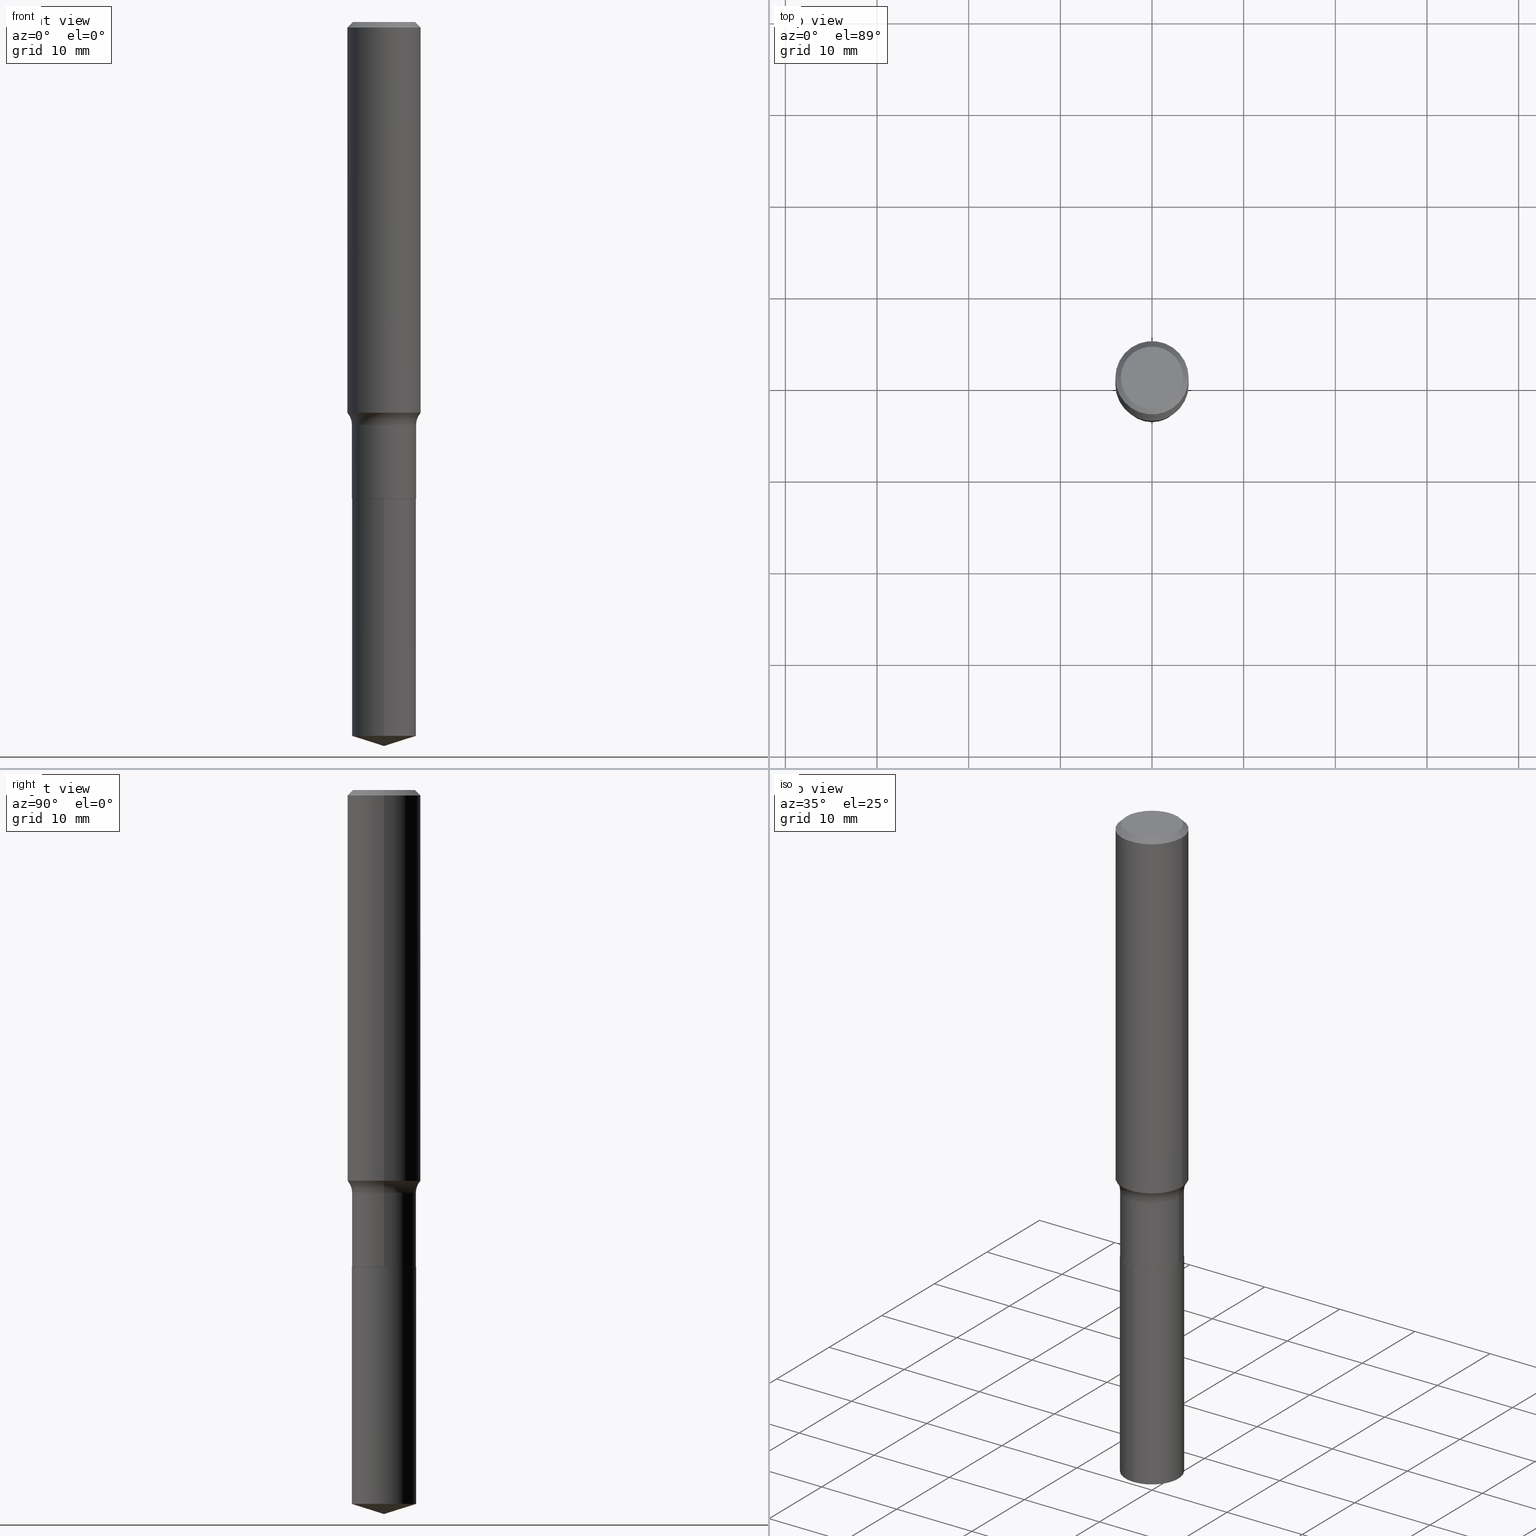
[diagram: canonical four-view strip — front | top / right | iso, engineering-drawing reading convention]
A machine part, canonical four-view strip (front | top / right | iso — engineering-drawing reading convention). The complete STEP part file that produces these views, byte-faithful:
ISO-10303-21;
HEADER;
FILE_DESCRIPTION (( 'STEP AP203' ),
    '1' );
FILE_NAME ('63177.STEP',
    '2024-04-19T14:57:51',
    ( '' ),
    ( '' ),
    'SwSTEP 2.0',
    'SolidWorks 2023',
    '' );
FILE_SCHEMA (( 'CONFIG_CONTROL_DESIGN' ));
ENDSEC;

DATA;
#1 = ORIENTED_EDGE ( 'NONE', *, *, #339, .F. ) ;
#2 = CC_DESIGN_APPROVAL ( #476, ( #38 ) ) ;
#3 = DIRECTION ( 'NONE',  ( -2.445770876945909598E-29, 3.491048756320918423E-15, 1.000000000000000000 ) ) ;
#4 = CYLINDRICAL_SURFACE ( 'NONE', #201, 0.1378000000000000058 ) ;
#5 = DIRECTION ( 'NONE',  ( -2.445770876945909598E-29, 3.491048756320918423E-15, 1.000000000000000000 ) ) ;
#6 = CARTESIAN_POINT ( 'NONE',  ( 0.1378000000000000058, -8.108267113195433386E-15, -2.046699999999999964 ) ) ;
#7 = CLOSED_SHELL ( 'NONE', ( #464, #281, #354, #455, #478 ) ) ;
#8 = CARTESIAN_POINT ( 'NONE',  ( 0.1338749999999999940, -1.040731925365424925E-15, 4.101342130351390035E-18 ) ) ;
#9 = DIRECTION ( 'NONE',  ( -6.659769872151639977E-15, -0.9537169507482280428, 0.3007057995042693443 ) ) ;
#10 = ORIENTED_EDGE ( 'NONE', *, *, #68, .F. ) ;
#11 = CARTESIAN_POINT ( 'NONE',  ( -0.1378000000000000336, -5.614534618527862586E-15, -2.046699999999999964 ) ) ;
#12 = CARTESIAN_POINT ( 'NONE',  ( 7.606847426740291198E-29, -1.085785984190932197E-14, -3.110199999999999854 ) ) ;
#13 = CARTESIAN_POINT ( 'NONE',  ( 5.777420054612421980E-31, -8.248624663016985234E-17, -0.02362500000000015282 ) ) ;
#14 = CARTESIAN_POINT ( 'NONE',  ( 5.006363740022211680E-29, -7.147760596879688202E-15, -2.047200000000000131 ) ) ;
#15 = FACE_OUTER_BOUND ( 'NONE', #24, .T. ) ;
#16 = AXIS2_PLACEMENT_3D ( 'NONE', #88, #5, #132 ) ;
#17 = COORDINATED_UNIVERSAL_TIME_OFFSET ( 5, 0, .BEHIND. ) ;
#18 = EDGE_CURVE ( 'NONE', #368, #175, #269, .T. ) ;
#19 = CARTESIAN_POINT ( 'NONE',  ( -0.1338749999999999940, 9.760872517903331886E-16, 4.101342130337800673E-18 ) ) ;
#20 = ORIENTED_EDGE ( 'NONE', *, *, #23, .F. ) ;
#21 = VECTOR ( 'NONE', #394, 39.37007874015748143 ) ;
#22 = TOROIDAL_SURFACE ( 'NONE', #219, 0.2157999999999999641, 0.07799999999999994438 ) ;
#23 = EDGE_CURVE ( 'NONE', #229, #116, #245, .T. ) ;
#24 = EDGE_LOOP ( 'NONE', ( #329, #155, #461, #419 ) ) ;
#25 = VERTEX_POINT ( 'NONE', #43 ) ;
#26 = DIRECTION ( 'NONE',  ( -2.445770876945909598E-29, 3.491048756320918423E-15, 1.000000000000000000 ) ) ;
#27 = CIRCLE ( 'NONE', #446, 0.1377999999999999781 ) ;
#28 = ORIENTED_EDGE ( 'NONE', *, *, #412, .F. ) ;
#29 = EDGE_CURVE ( 'NONE', #25, #274, #228, .T. ) ;
#30 = PRODUCT_DEFINITION_SHAPE ( 'NONE', 'NONE',  #367 ) ;
#31 =( GEOMETRIC_REPRESENTATION_CONTEXT ( 3 ) GLOBAL_UNCERTAINTY_ASSIGNED_CONTEXT ( ( #361 ) ) GLOBAL_UNIT_ASSIGNED_CONTEXT ( ( #253, #467, #98 ) ) REPRESENTATION_CONTEXT ( 'NONE', 'WORKASPACE' ) );
#32 = AXIS2_PLACEMENT_3D ( 'NONE', #39, #120, #115 ) ;
#33 = CARTESIAN_POINT ( 'NONE',  ( 4.231394675342142307E-29, -6.041310160600295064E-15, -1.730300000000000171 ) ) ;
#34 = ORIENTED_EDGE ( 'NONE', *, *, #441, .F. ) ;
#35 = DIRECTION ( 'NONE',  ( -1.000000000000000000, 6.982962677686265922E-15, -4.876176775795935793E-29 ) ) ;
#36 = EDGE_CURVE ( 'NONE', #204, #274, #124, .T. ) ;
#37 = CARTESIAN_POINT ( 'NONE',  ( 5.006363740022211680E-29, -7.147760596879688202E-15, -2.047200000000000131 ) ) ;
#38 = SECURITY_CLASSIFICATION ( '', '', #474 ) ;
#39 = CARTESIAN_POINT ( 'NONE',  ( 5.777420054612421980E-31, -8.248624663016985234E-17, -0.02362500000000015282 ) ) ;
#40 = EDGE_LOOP ( 'NONE', ( #369, #134, #221, #188 ) ) ;
#41 = DIRECTION ( 'NONE',  ( 6.776566513254266815E-15, 0.9537169507482301523, 0.3007057995042627385 ) ) ;
#42 = CARTESIAN_POINT ( 'NONE',  ( 5.005141005619118879E-29, -7.146014856210265909E-15, -2.046699999999999964 ) ) ;
#43 = CARTESIAN_POINT ( 'NONE',  ( -0.1575000000000002232, -4.741283607490324763E-15, -1.678481952950733325 ) ) ;
#44 = CIRCLE ( 'NONE', #388, 0.1575000000000000011 ) ;
#45 = ORIENTED_EDGE ( 'NONE', *, *, #103, .T. ) ;
#46 = CIRCLE ( 'NONE', #475, 0.1338749999999999940 ) ;
#47 = CARTESIAN_POINT ( 'NONE',  ( 5.777420054612421980E-31, -8.248624663016985234E-17, -0.02362500000000015282 ) ) ;
#48 = FACE_OUTER_BOUND ( 'NONE', #399, .T. ) ;
#49 = ORIENTED_EDGE ( 'NONE', *, *, #136, .F. ) ;
#50 = MANIFOLD_SOLID_BREP ( 'Body-Move/Copy2[1]', #7 ) ;
#51 = AXIS2_PLACEMENT_3D ( 'NONE', #233, #75, #384 ) ;
#52 = EDGE_CURVE ( 'NONE', #25, #262, #336, .T. ) ;
#53 = CARTESIAN_POINT ( 'NONE',  ( -0.1373000000000000054, -6.172185420681070017E-15, -2.047200000000000131 ) ) ;
#54 = DIRECTION ( 'NONE',  ( -0.7071067811866320607, 7.493145998870660238E-15, 0.7071067811864629737 ) ) ;
#55 = AXIS2_PLACEMENT_3D ( 'NONE', #379, #170, #327 ) ;
#56 = PERSON_AND_ORGANIZATION_ROLE ( 'design_supplier' ) ;
#57 = EDGE_CURVE ( 'NONE', #274, #175, #142, .T. ) ;
#58 = CARTESIAN_POINT ( 'NONE',  ( -0.1377999999999999781, -5.614534618527862586E-15, -1.730300000000000171 ) ) ;
#59 = VECTOR ( 'NONE', #131, 39.37007874015748143 ) ;
#60 = VECTOR ( 'NONE', #386, 39.37007874015748143 ) ;
#61 = ADVANCED_FACE ( 'NONE', ( #133 ), #67, .T. ) ;
#62 = DIRECTION ( 'NONE',  ( -2.445468806185136597E-29, 3.491481338843145583E-15, 1.000000000000000000 ) ) ;
#63 = VECTOR ( 'NONE', #9, 39.37007874015748854 ) ;
#64 = CC_DESIGN_PERSON_AND_ORGANIZATION_ASSIGNMENT ( #393, #353, ( #101 ) ) ;
#65 = ORIENTED_EDGE ( 'NONE', *, *, #183, .T. ) ;
#66 = ORIENTED_EDGE ( 'NONE', *, *, #152, .F. ) ;
#67 = CYLINDRICAL_SURFACE ( 'NONE', #190, 0.1378000000000000058 ) ;
#68 = EDGE_CURVE ( 'NONE', #175, #274, #44, .T. ) ;
#69 = EDGE_LOOP ( 'NONE', ( #105, #480, #484, #482 ) ) ;
#70 = DATE_AND_TIME ( #109, #139 ) ;
#71 = DIMENSIONAL_EXPONENTS ( 1.000000000000000000, 0.000000000000000000, 0.000000000000000000, 0.000000000000000000, 0.000000000000000000, 0.000000000000000000, 0.000000000000000000 ) ;
#72 = CLOSED_SHELL ( 'NONE', ( #409, #99, #202, #406, #61, #468, #110, #320, #93, #81, #346, #209 ) ) ;
#73 = CARTESIAN_POINT ( 'NONE',  ( -0.1575000000000000011, 1.017330375105417098E-15, -0.02362500000000015282 ) ) ;
#74 = AXIS2_PLACEMENT_3D ( 'NONE', #149, #218, #363 ) ;
#75 = DIRECTION ( 'NONE',  ( -2.445468806185136597E-29, 3.491481338843145583E-15, 1.000000000000000000 ) ) ;
#76 = FACE_OUTER_BOUND ( 'NONE', #150, .T. ) ;
#77 = LOCAL_TIME ( 10, 57, 51.00000000000000000, #437 ) ;
#78 = CARTESIAN_POINT ( 'NONE',  ( 4.231394675342142307E-29, -6.041310160600295064E-15, -1.730300000000000171 ) ) ;
#79 = ORIENTED_EDGE ( 'NONE', *, *, #90, .T. ) ;
#80 = DIRECTION ( 'NONE',  ( -2.445770876945909598E-29, 3.491048756320918423E-15, 1.000000000000000000 ) ) ;
#81 = ADVANCED_FACE ( 'NONE', ( #172 ), #454, .F. ) ;
#82 = PLANE ( 'NONE',  #268 ) ;
#83 = ORIENTED_EDGE ( 'NONE', *, *, #52, .T. ) ;
#84 = CONICAL_SURFACE ( 'NONE', #153, 0.1575000000000000011, 0.7853981633974447263 ) ;
#85 = VECTOR ( 'NONE', #143, 39.37007874015748143 ) ;
#86 = PERSON_AND_ORGANIZATION ( #226, #185 ) ;
#87 = CARTESIAN_POINT ( 'NONE',  ( 0.1373000000000000054, -8.106521372526011094E-15, -2.047200000000000131 ) ) ;
#88 = CARTESIAN_POINT ( 'NONE',  ( 7.499953905772830798E-29, -1.070706573415739068E-14, -3.066751826892477162 ) ) ;
#89 = CARTESIAN_POINT ( 'NONE',  ( 0.000000000000000000, 0.000000000000000000, 0.000000000000000000 ) ) ;
#90 = EDGE_CURVE ( 'NONE', #408, #262, #27, .T. ) ;
#91 = CARTESIAN_POINT ( 'NONE',  ( 0.1378000000000000058, -9.622522569851674770E-16, 6.719371597046798536E-30 ) ) ;
#92 = EDGE_LOOP ( 'NONE', ( #237, #434 ) ) ;
#93 = ADVANCED_FACE ( 'NONE', ( #326 ), #84, .T. ) ;
#94 = DATE_AND_TIME ( #402, #343 ) ;
#95 = CARTESIAN_POINT ( 'NONE',  ( 9.791278898774930393E-16, 0.1377999999999892644, -3.066751826892477606 ) ) ;
#96 = CARTESIAN_POINT ( 'NONE',  ( 5.005141005619118879E-29, -7.146014856210265909E-15, -2.046699999999999964 ) ) ;
#97 = APPROVAL_ROLE ( '' ) ;
#98 =( NAMED_UNIT ( * ) SI_UNIT ( $, .STERADIAN. ) SOLID_ANGLE_UNIT ( ) );
#99 = ADVANCED_FACE ( 'NONE', ( #452 ), #254, .T. ) ;
#100 = DIRECTION ( 'NONE',  ( -6.982962677686266711E-15, -1.000000000000000000, 3.491481338843145583E-15 ) ) ;
#101 = PRODUCT_DEFINITION_FORMATION_WITH_SPECIFIED_SOURCE ( 'ANY', '', #251, .NOT_KNOWN. ) ;
#102 = ORIENTED_EDGE ( 'NONE', *, *, #339, .T. ) ;
#103 = EDGE_CURVE ( 'NONE', #317, #25, #217, .T. ) ;
#104 = APPROVAL_PERSON_ORGANIZATION ( #86, #476, #97 ) ;
#105 = ORIENTED_EDGE ( 'NONE', *, *, #18, .F. ) ;
#106 = CC_DESIGN_PERSON_AND_ORGANIZATION_ASSIGNMENT ( #140, #215, ( #38 ) ) ;
#107 = CIRCLE ( 'NONE', #377, 0.1377999999999999781 ) ;
#108 = VERTEX_POINT ( 'NONE', #6 ) ;
#109 = CALENDAR_DATE ( 2024, 19, 4 ) ;
#110 = ADVANCED_FACE ( 'NONE', ( #458 ), #22, .F. ) ;
#111 = EDGE_LOOP ( 'NONE', ( #293, #148, #488, #164 ) ) ;
#112 = CARTESIAN_POINT ( 'NONE',  ( 0.1575000000000002232, -6.960205038048073791E-15, -1.678481952950733325 ) ) ;
#113 = APPLICATION_CONTEXT ( 'configuration controlled 3d designs of mechanical parts and assemblies' ) ;
#114 = CARTESIAN_POINT ( 'NONE',  ( 0.1377999999999999781, -7.003562417585462541E-15, -1.730300000000000171 ) ) ;
#115 = DIRECTION ( 'NONE',  ( -1.000000000000000000, 6.982962677686265922E-15, 0.000000000000000000 ) ) ;
#116 = VERTEX_POINT ( 'NONE', #421 ) ;
#117 = DIRECTION ( 'NONE',  ( 1.000000000000000000, -6.982962677686267499E-15, 0.000000000000000000 ) ) ;
#118 = CALENDAR_DATE ( 2024, 19, 4 ) ;
#119 = CYLINDRICAL_SURFACE ( 'NONE', #321, 0.1378000000000000058 ) ;
#120 = DIRECTION ( 'NONE',  ( 2.445468806185136597E-29, -3.491481338843145583E-15, -1.000000000000000000 ) ) ;
#121 = CIRCLE ( 'NONE', #323, 0.1378000000000000058 ) ;
#122 = ORIENTED_EDGE ( 'NONE', *, *, #309, .T. ) ;
#123 = DIRECTION ( 'NONE',  ( -2.445468806185136597E-29, 3.491481338843145583E-15, 1.000000000000000000 ) ) ;
#124 = LINE ( 'NONE', #73, #60 ) ;
#125 = ORIENTED_EDGE ( 'NONE', *, *, #126, .F. ) ;
#126 = EDGE_CURVE ( 'NONE', #108, #408, #430, .T. ) ;
#127 = AXIS2_PLACEMENT_3D ( 'NONE', #166, #277, #265 ) ;
#128 = ORIENTED_EDGE ( 'NONE', *, *, #371, .F. ) ;
#129 = ORIENTED_EDGE ( 'NONE', *, *, #234, .T. ) ;
#130 = CC_DESIGN_PERSON_AND_ORGANIZATION_ASSIGNMENT ( #470, #56, ( #101 ) ) ;
#131 = DIRECTION ( 'NONE',  ( -2.445468806185136877E-29, 3.491481338843145188E-15, 1.000000000000000000 ) ) ;
#132 = DIRECTION ( 'NONE',  ( -6.982962677686265922E-15, -1.000000000000000000, 3.964946289788480896E-15 ) ) ;
#133 = FACE_OUTER_BOUND ( 'NONE', #362, .T. ) ;
#134 = ORIENTED_EDGE ( 'NONE', *, *, #18, .T. ) ;
#135 = CIRCLE ( 'NONE', #404, 0.1378000000000000058 ) ;
#136 = EDGE_CURVE ( 'NONE', #317, #408, #154, .T. ) ;
#137 = ORIENTED_EDGE ( 'NONE', *, *, #412, .T. ) ;
#138 = DIRECTION ( 'NONE',  ( 1.000000000000000000, -6.982962677686262766E-15, 0.000000000000000000 ) ) ;
#139 = LOCAL_TIME ( 10, 57, 51.00000000000000000, #448 ) ;
#140 = PERSON_AND_ORGANIZATION ( #226, #185 ) ;
#141 = CARTESIAN_POINT ( 'NONE',  ( 0.2157999999999999641, -7.548233506444991376E-15, -1.730300000000000171 ) ) ;
#142 = CIRCLE ( 'NONE', #318, 0.1575000000000000011 ) ;
#143 = DIRECTION ( 'NONE',  ( -2.445770876945909598E-29, 3.491048756320918423E-15, 1.000000000000000000 ) ) ;
#144 = CIRCLE ( 'NONE', #16, 0.1378000000000000058 ) ;
#145 = LENGTH_MEASURE_WITH_UNIT ( LENGTH_MEASURE( 0.02539999999999999897 ), #242 );
#146 = ORIENTED_EDGE ( 'NONE', *, *, #183, .F. ) ;
#147 = PRODUCT_RELATED_PRODUCT_CATEGORY ( 'detail', '', ( #251 ) ) ;
#148 = ORIENTED_EDGE ( 'NONE', *, *, #289, .T. ) ;
#149 = CARTESIAN_POINT ( 'NONE',  ( -8.868397382352875718E-28, 1.265841189972345679E-13, 36.25987874015748247 ) ) ;
#150 = EDGE_LOOP ( 'NONE', ( #410, #298 ) ) ;
#151 = VERTEX_POINT ( 'NONE', #95 ) ;
#152 = EDGE_CURVE ( 'NONE', #229, #151, #227, .T. ) ;
#153 = AXIS2_PLACEMENT_3D ( 'NONE', #159, #291, #328 ) ;
#154 = CIRCLE ( 'NONE', #184, 0.07799999999999993050 ) ;
#155 = ORIENTED_EDGE ( 'NONE', *, *, #364, .T. ) ;
#156 = CYLINDRICAL_SURFACE ( 'NONE', #313, 0.1575000000000000844 ) ;
#157 = APPROVAL_ROLE ( '' ) ;
#158 = CC_DESIGN_PERSON_AND_ORGANIZATION_ASSIGNMENT ( #360, #432, ( #251 ) ) ;
#159 = CARTESIAN_POINT ( 'NONE',  ( 5.777420054612421980E-31, -8.248624663016985234E-17, -0.02362500000000015282 ) ) ;
#160 = DIRECTION ( 'NONE',  ( -2.445770876945909598E-29, 3.491048756320918423E-15, 1.000000000000000000 ) ) ;
#161 = CIRCLE ( 'NONE', #127, 0.1373000000000000054 ) ;
#162 = DIRECTION ( 'NONE',  ( -2.445468806185136877E-29, 3.491481338843145188E-15, 1.000000000000000000 ) ) ;
#163 = DIRECTION ( 'NONE',  ( 1.000000000000000000, -6.982962677686262766E-15, 0.000000000000000000 ) ) ;
#164 = ORIENTED_EDGE ( 'NONE', *, *, #309, .F. ) ;
#165 = ORIENTED_EDGE ( 'NONE', *, *, #152, .T. ) ;
#166 = CARTESIAN_POINT ( 'NONE',  ( 5.006363740022211680E-29, -7.147760596879688202E-15, -2.047200000000000131 ) ) ;
#167 = DIRECTION ( 'NONE',  ( 0.7071067811865450192, -7.319954787623246579E-15, -0.7071067811865500152 ) ) ;
#168 = ORIENTED_EDGE ( 'NONE', *, *, #52, .F. ) ;
#169 = CC_DESIGN_DATE_AND_TIME_ASSIGNMENT ( #70, #263, ( #367 ) ) ;
#170 = DIRECTION ( 'NONE',  ( -2.445468806185136597E-29, 3.491481338843145583E-15, 1.000000000000000000 ) ) ;
#171 = CC_DESIGN_SECURITY_CLASSIFICATION ( #38, ( #101 ) ) ;
#172 = FACE_OUTER_BOUND ( 'NONE', #315, .T. ) ;
#173 = APPROVAL_STATUS ( 'not_yet_approved' ) ;
#174 = DIRECTION ( 'NONE',  ( 1.000000000000000000, -6.982962677686262766E-15, 0.000000000000000000 ) ) ;
#175 = VERTEX_POINT ( 'NONE', #199 ) ;
#176 = CIRCLE ( 'NONE', #255, 0.1338749999999999940 ) ;
#177 = CARTESIAN_POINT ( 'NONE',  ( 5.006363740022211680E-29, -7.147760596879688202E-15, -2.047200000000000131 ) ) ;
#178 = SHAPE_DEFINITION_REPRESENTATION ( #30, #306 ) ;
#179 = AXIS2_PLACEMENT_3D ( 'NONE', #303, #424, #385 ) ;
#180 = CARTESIAN_POINT ( 'NONE',  ( -0.1575000000000000011, -1.852332522649168278E-15, -0.02362500000000015282 ) ) ;
#181 = CARTESIAN_POINT ( 'NONE',  ( 7.606836581477168962E-29, -1.085785984190932197E-14, -3.110199999999999854 ) ) ;
#182 = AXIS2_PLACEMENT_3D ( 'NONE', #418, #305, #35 ) ;
#183 = EDGE_CURVE ( 'NONE', #262, #408, #107, .T. ) ;
#184 = AXIS2_PLACEMENT_3D ( 'NONE', #141, #100, #433 ) ;
#185 = ORGANIZATION ( 'UNSPECIFIED', 'UNSPECIFIED', '' ) ;
#186 = EDGE_CURVE ( 'NONE', #247, #300, #211, .T. ) ;
#187 = DIRECTION ( 'NONE',  ( -2.438088387897960049E-29, 3.491481338843145188E-15, 1.000000000000000000 ) ) ;
#188 = ORIENTED_EDGE ( 'NONE', *, *, #36, .F. ) ;
#189 = AXIS2_PLACEMENT_3D ( 'NONE', #492, #160, #292 ) ;
#190 = AXIS2_PLACEMENT_3D ( 'NONE', #340, #236, #491 ) ;
#191 = VECTOR ( 'NONE', #41, 39.37007874015748854 ) ;
#192 = CARTESIAN_POINT ( 'NONE',  ( 0.000000000000000000, 0.000000000000000000, 0.000000000000000000 ) ) ;
#193 = CARTESIAN_POINT ( 'NONE',  ( -0.1575000000000000844, 1.119104808822158392E-15, -7.747322767151481189E-30 ) ) ;
#194 = CYLINDRICAL_SURFACE ( 'NONE', #232, 0.1575000000000000844 ) ;
#195 = ORIENTED_EDGE ( 'NONE', *, *, #485, .T. ) ;
#196 = LINE ( 'NONE', #231, #21 ) ;
#197 = DIRECTION ( 'NONE',  ( 1.000000000000000000, -6.982962677686267499E-15, 4.876176775795936353E-29 ) ) ;
#198 = DIRECTION ( 'NONE',  ( 1.000000000000000000, -6.982962677686267499E-15, 0.000000000000000000 ) ) ;
#199 = CARTESIAN_POINT ( 'NONE',  ( 0.1575000000000000011, -1.182302868365756679E-15, -0.02362500000000015282 ) ) ;
#200 = DIRECTION ( 'NONE',  ( 1.000000000000000000, -6.982962677686265133E-15, 4.883557194083112340E-29 ) ) ;
#201 = AXIS2_PLACEMENT_3D ( 'NONE', #457, #123, #271 ) ;
#202 = ADVANCED_FACE ( 'NONE', ( #272 ), #156, .T. ) ;
#203 = DIRECTION ( 'NONE',  ( -2.445468806185136597E-29, 3.491481338843145583E-15, 1.000000000000000000 ) ) ;
#204 = VERTEX_POINT ( 'NONE', #19 ) ;
#205 = DIRECTION ( 'NONE',  ( -2.445468806185136597E-29, 3.491481338843145583E-15, 1.000000000000000000 ) ) ;
#206 = DIRECTION ( 'NONE',  ( -2.445468806185136597E-29, 3.491481338843145583E-15, 1.000000000000000000 ) ) ;
#207 = DIRECTION ( 'NONE',  ( -6.982962677686265922E-15, -1.000000000000000000, 3.964946289788480896E-15 ) ) ;
#208 = DIRECTION ( 'NONE',  ( 1.000000000000000000, -6.982962677686265922E-15, 0.000000000000000000 ) ) ;
#209 = ADVANCED_FACE ( 'NONE', ( #15 ), #319, .T. ) ;
#210 = DIRECTION ( 'NONE',  ( -6.982962677686265922E-15, -1.000000000000000000, 3.964946289788480896E-15 ) ) ;
#211 = CIRCLE ( 'NONE', #447, 0.1378000000000000058 ) ;
#212 = DIRECTION ( 'NONE',  ( 1.000000000000000000, 0.000000000000000000, 0.000000000000000000 ) ) ;
#213 = AXIS2_PLACEMENT_3D ( 'NONE', #89, #280, #212 ) ;
#214 = CARTESIAN_POINT ( 'NONE',  ( 0.1373000000000000054, -8.106521372526011094E-15, -2.047200000000000131 ) ) ;
#215 = PERSON_AND_ORGANIZATION_ROLE ( 'classification_officer' ) ;
#216 = CC_DESIGN_PERSON_AND_ORGANIZATION_ASSIGNMENT ( #451, #423, ( #367 ) ) ;
#217 = CIRCLE ( 'NONE', #51, 0.1575000000000002232 ) ;
#218 = DIRECTION ( 'NONE',  ( -2.445770876945909598E-29, 3.491048756320918423E-15, 1.000000000000000000 ) ) ;
#219 = AXIS2_PLACEMENT_3D ( 'NONE', #78, #206, #338 ) ;
#220 = APPLICATION_PROTOCOL_DEFINITION ( 'international standard', 'config_control_design', 1994, #113 ) ;
#221 = ORIENTED_EDGE ( 'NONE', *, *, #68, .T. ) ;
#222 = CIRCLE ( 'NONE', #189, 0.1378000000000000058 ) ;
#223 = ORIENTED_EDGE ( 'NONE', *, *, #289, .F. ) ;
#224 = EDGE_LOOP ( 'NONE', ( #426, #425, #422, #449 ) ) ;
#225 = CARTESIAN_POINT ( 'NONE',  ( -9.622522569851173843E-16, -0.1378000000000071668, -2.047199999999999243 ) ) ;
#226 = PERSON ( 'UNSPECIFIED', 'UNSPECIFIED', 'UNSPECIFIED', ('UNSPECIFIED'), ('UNSPECIFIED'), ('UNSPECIFIED') ) ;
#227 = LINE ( 'NONE', #12, #191 ) ;
#228 = LINE ( 'NONE', #193, #283 ) ;
#229 = VERTEX_POINT ( 'NONE', #181 ) ;
#230 = COORDINATED_UNIVERSAL_TIME_OFFSET ( 5, 0, .BEHIND. ) ;
#231 = CARTESIAN_POINT ( 'NONE',  ( 0.1575000000000000844, -1.099816621735587677E-15, 7.679978421878603638E-30 ) ) ;
#232 = AXIS2_PLACEMENT_3D ( 'NONE', #192, #325, #197 ) ;
#233 = CARTESIAN_POINT ( 'NONE',  ( 4.104675257685727015E-29, -5.860388416312484733E-15, -1.678481952950733325 ) ) ;
#234 = EDGE_CURVE ( 'NONE', #204, #368, #176, .T. ) ;
#235 = DIRECTION ( 'NONE',  ( -6.982962677686265922E-15, -1.000000000000000000, 3.964946289788480896E-15 ) ) ;
#236 = DIRECTION ( 'NONE',  ( -2.445468806185136597E-29, 3.491481338843145583E-15, 1.000000000000000000 ) ) ;
#237 = ORIENTED_EDGE ( 'NONE', *, *, #438, .F. ) ;
#238 = PLANE ( 'NONE',  #179 ) ;
#239 = AXIS2_PLACEMENT_3D ( 'NONE', #37, #80, #207 ) ;
#240 = DIRECTION ( 'NONE',  ( 7.105427357601001859E-15, 1.000000000000000000, -3.491481338843145583E-15 ) ) ;
#241 = ORIENTED_EDGE ( 'NONE', *, *, #57, .F. ) ;
#242 =( LENGTH_UNIT ( ) NAMED_UNIT ( * ) SI_UNIT ( $, .METRE. ) );
#243 = CONICAL_SURFACE ( 'NONE', #74, 124.8659371009170940, 1.265363707695896345 ) ;
#244 = EDGE_CURVE ( 'NONE', #108, #370, #135, .T. ) ;
#245 = LINE ( 'NONE', #465, #63 ) ;
#246 = LINE ( 'NONE', #295, #59 ) ;
#247 = VERTEX_POINT ( 'NONE', #479 ) ;
#248 = EDGE_CURVE ( 'NONE', #270, #370, #400, .T. ) ;
#249 = APPROVAL_DATE_TIME ( #94, #459 ) ;
#250 = MECHANICAL_CONTEXT ( 'NONE', #113, 'mechanical' ) ;
#251 = PRODUCT ( '63177', '63177', '', ( #250 ) ) ;
#252 = CIRCLE ( 'NONE', #429, 0.1378000000000000058 ) ;
#253 =( CONVERSION_BASED_UNIT ( 'INCH', #145 ) LENGTH_UNIT ( ) NAMED_UNIT ( #71 ) );
#254 = CONICAL_SURFACE ( 'NONE', #32, 0.1575000000000000011, 0.7853981633974447263 ) ;
#255 = AXIS2_PLACEMENT_3D ( 'NONE', #473, #435, #397 ) ;
#256 = DIRECTION ( 'NONE',  ( 1.000000000000000000, -6.982962677686266711E-15, 4.876170806578254279E-29 ) ) ;
#257 = DIRECTION ( 'NONE',  ( 1.000000000000000000, -6.982962677686265922E-15, 4.876176775795935793E-29 ) ) ;
#258 = APPROVAL_PERSON_ORGANIZATION ( #439, #459, #350 ) ;
#259 = LINE ( 'NONE', #225, #358 ) ;
#260 = AXIS2_PLACEMENT_3D ( 'NONE', #365, #26, #481 ) ;
#261 = EDGE_CURVE ( 'NONE', #396, #108, #352, .T. ) ;
#262 = VERTEX_POINT ( 'NONE', #58 ) ;
#263 = DATE_TIME_ROLE ( 'creation_date' ) ;
#264 = CIRCLE ( 'NONE', #55, 0.1575000000000002232 ) ;
#265 = DIRECTION ( 'NONE',  ( 1.000000000000000000, -6.982962677686262766E-15, 0.000000000000000000 ) ) ;
#266 = CARTESIAN_POINT ( 'NONE',  ( 0.1575000000000000011, -1.163014681279185964E-15, -0.02362500000000015282 ) ) ;
#267 = CARTESIAN_POINT ( 'NONE',  ( 5.006363740022211680E-29, -7.147760596879688202E-15, -2.047200000000000131 ) ) ;
#268 = AXIS2_PLACEMENT_3D ( 'NONE', #344, #187, #257 ) ;
#269 = LINE ( 'NONE', #266, #347 ) ;
#270 = VERTEX_POINT ( 'NONE', #355 ) ;
#271 = DIRECTION ( 'NONE',  ( 1.000000000000000000, -6.982962677686265922E-15, 4.876176775795934672E-29 ) ) ;
#272 = FACE_OUTER_BOUND ( 'NONE', #414, .T. ) ;
#273 = CARTESIAN_POINT ( 'NONE',  ( -0.2157999999999999641, -4.507958936829999710E-15, -1.730300000000000171 ) ) ;
#274 = VERTEX_POINT ( 'NONE', #180 ) ;
#275 = DIRECTION ( 'NONE',  ( 1.000000000000000000, -6.982962677686265922E-15, 0.000000000000000000 ) ) ;
#276 = APPROVAL_DATE_TIME ( #416, #428 ) ;
#277 = DIRECTION ( 'NONE',  ( -2.445468806185136597E-29, 3.491481338843145583E-15, 1.000000000000000000 ) ) ;
#278 = AXIS2_PLACEMENT_3D ( 'NONE', #177, #469, #138 ) ;
#279 = DATE_AND_TIME ( #282, #310 ) ;
#280 = DIRECTION ( 'NONE',  ( 0.000000000000000000, 0.000000000000000000, 1.000000000000000000 ) ) ;
#281 = ADVANCED_FACE ( 'NONE', ( #359 ), #243, .T. ) ;
#282 = CALENDAR_DATE ( 2024, 19, 4 ) ;
#283 = VECTOR ( 'NONE', #162, 39.37007874015748143 ) ;
#284 = ORIENTED_EDGE ( 'NONE', *, *, #90, .F. ) ;
#285 = DIRECTION ( 'NONE',  ( -2.445468806185136597E-29, 3.491481338843145583E-15, 1.000000000000000000 ) ) ;
#286 = CIRCLE ( 'NONE', #348, 0.1373000000000000054 ) ;
#287 = CARTESIAN_POINT ( 'NONE',  ( 5.006363740022211680E-29, -7.147760596879688202E-15, -2.047200000000000131 ) ) ;
#288 = CC_DESIGN_APPROVAL ( #428, ( #101 ) ) ;
#289 = EDGE_CURVE ( 'NONE', #151, #300, #311, .T. ) ;
#290 = EDGE_LOOP ( 'NONE', ( #128, #195, #334, #146 ) ) ;
#291 = DIRECTION ( 'NONE',  ( 2.445468806185136597E-29, -3.491481338843145583E-15, -1.000000000000000000 ) ) ;
#292 = DIRECTION ( 'NONE',  ( -6.982962677686265922E-15, -1.000000000000000000, 3.964946289788480896E-15 ) ) ;
#293 = ORIENTED_EDGE ( 'NONE', *, *, #445, .T. ) ;
#294 = ORIENTED_EDGE ( 'NONE', *, *, #441, .T. ) ;
#295 = CARTESIAN_POINT ( 'NONE',  ( -0.1378000000000000058, 9.791278898774180975E-16, -6.778292554371260034E-30 ) ) ;
#296 = FACE_OUTER_BOUND ( 'NONE', #92, .T. ) ;
#297 = DIRECTION ( 'NONE',  ( -2.445468806185136597E-29, 3.491481338843145583E-15, 1.000000000000000000 ) ) ;
#298 = ORIENTED_EDGE ( 'NONE', *, *, #391, .T. ) ;
#299 = CYLINDRICAL_SURFACE ( 'NONE', #239, 0.1378000000000000058 ) ;
#300 = VERTEX_POINT ( 'NONE', #316 ) ;
#301 = EDGE_CURVE ( 'NONE', #368, #204, #46, .T. ) ;
#302 = COORDINATED_UNIVERSAL_TIME_OFFSET ( 5, 0, .BEHIND. ) ;
#303 = CARTESIAN_POINT ( 'NONE',  ( 5.006363740022211680E-29, -7.147760596879688202E-15, -2.047200000000000131 ) ) ;
#304 = APPROVAL_PERSON_ORGANIZATION ( #411, #428, #157 ) ;
#305 = DIRECTION ( 'NONE',  ( 2.438088387897960049E-29, -3.491481338843145188E-15, -1.000000000000000000 ) ) ;
#306 = ADVANCED_BREP_SHAPE_REPRESENTATION ( '63177', ( #50, #380, #213 ), #31 ) ;
#307 = APPROVAL_DATE_TIME ( #356, #476 ) ;
#308 = DIRECTION ( 'NONE',  ( -2.445770876945909598E-29, 3.491048756320918423E-15, 1.000000000000000000 ) ) ;
#309 = EDGE_CURVE ( 'NONE', #116, #247, #259, .T. ) ;
#310 = LOCAL_TIME ( 10, 57, 51.00000000000000000, #302 ) ;
#311 = LINE ( 'NONE', #472, #85 ) ;
#312 = ORIENTED_EDGE ( 'NONE', *, *, #301, .T. ) ;
#313 = AXIS2_PLACEMENT_3D ( 'NONE', #387, #450, #401 ) ;
#314 = ORIENTED_EDGE ( 'NONE', *, *, #445, .F. ) ;
#315 = EDGE_LOOP ( 'NONE', ( #129, #312 ) ) ;
#316 = CARTESIAN_POINT ( 'NONE',  ( 9.791278898774932365E-16, 0.1377999999999928726, -2.047200000000000575 ) ) ;
#317 = VERTEX_POINT ( 'NONE', #112 ) ;
#318 = AXIS2_PLACEMENT_3D ( 'NONE', #47, #203, #208 ) ;
#319 = CONICAL_SURFACE ( 'NONE', #278, 0.1373000000000000054, 0.7853981633975678500 ) ;
#320 = ADVANCED_FACE ( 'NONE', ( #375 ), #194, .T. ) ;
#321 = AXIS2_PLACEMENT_3D ( 'NONE', #417, #420, #235 ) ;
#322 = ORIENTED_EDGE ( 'NONE', *, *, #136, .T. ) ;
#323 = AXIS2_PLACEMENT_3D ( 'NONE', #267, #308, #210 ) ;
#324 = DIRECTION ( 'NONE',  ( -2.445468806185136597E-29, 3.491481338843145583E-15, 1.000000000000000000 ) ) ;
#325 = DIRECTION ( 'NONE',  ( -2.445468806185136597E-29, 3.491481338843145583E-15, 1.000000000000000000 ) ) ;
#326 = FACE_OUTER_BOUND ( 'NONE', #69, .T. ) ;
#327 = DIRECTION ( 'NONE',  ( 1.000000000000000000, -6.982962677686271444E-15, 0.000000000000000000 ) ) ;
#328 = DIRECTION ( 'NONE',  ( -1.000000000000000000, 6.982962677686265922E-15, 0.000000000000000000 ) ) ;
#329 = ORIENTED_EDGE ( 'NONE', *, *, #248, .F. ) ;
#330 = CC_DESIGN_APPROVAL ( #459, ( #367 ) ) ;
#331 = CONICAL_SURFACE ( 'NONE', #443, 0.1373000000000000054, 0.7853981633975678500 ) ;
#332 = FACE_OUTER_BOUND ( 'NONE', #290, .T. ) ;
#333 = DIRECTION ( 'NONE',  ( -2.445468806185136597E-29, 3.491481338843145583E-15, 1.000000000000000000 ) ) ;
#334 = ORIENTED_EDGE ( 'NONE', *, *, #126, .T. ) ;
#335 = CARTESIAN_POINT ( 'NONE',  ( 4.231394675342142307E-29, -6.041310160600295064E-15, -1.730300000000000171 ) ) ;
#336 = CIRCLE ( 'NONE', #487, 0.07799999999999993050 ) ;
#337 = DIRECTION ( 'NONE',  ( -2.445468806185136597E-29, 3.491481338843145583E-15, 1.000000000000000000 ) ) ;
#338 = DIRECTION ( 'NONE',  ( 1.000000000000000000, -6.982962677686265133E-15, 4.883557194083112340E-29 ) ) ;
#339 = EDGE_CURVE ( 'NONE', #151, #116, #144, .T. ) ;
#340 = CARTESIAN_POINT ( 'NONE',  ( 0.000000000000000000, 0.000000000000000000, 0.000000000000000000 ) ) ;
#341 = CALENDAR_DATE ( 2024, 19, 4 ) ;
#342 = CARTESIAN_POINT ( 'NONE',  ( 4.231394675342142307E-29, -6.041310160600295064E-15, -1.730300000000000171 ) ) ;
#343 = LOCAL_TIME ( 10, 57, 51.00000000000000000, #17 ) ;
#344 = CARTESIAN_POINT ( 'NONE',  ( 5.006363740022211680E-29, -7.147760596879688202E-15, -2.047200000000000131 ) ) ;
#345 = DIRECTION ( 'NONE',  ( -2.445468806185136877E-29, 3.491481338843145188E-15, 1.000000000000000000 ) ) ;
#346 = ADVANCED_FACE ( 'NONE', ( #296 ), #82, .F. ) ;
#347 = VECTOR ( 'NONE', #167, 39.37007874015748143 ) ;
#348 = AXIS2_PLACEMENT_3D ( 'NONE', #287, #62, #174 ) ;
#349 = DIRECTION ( 'NONE',  ( -2.445468806185136597E-29, 3.491481338843145583E-15, 1.000000000000000000 ) ) ;
#350 = APPROVAL_ROLE ( '' ) ;
#351 = ORIENTED_EDGE ( 'NONE', *, *, #371, .T. ) ;
#352 = LINE ( 'NONE', #214, #466 ) ;
#353 = PERSON_AND_ORGANIZATION_ROLE ( 'creator' ) ;
#354 = ADVANCED_FACE ( 'NONE', ( #486 ), #415, .T. ) ;
#355 = CARTESIAN_POINT ( 'NONE',  ( -0.1373000000000000054, -6.169536193506959605E-15, -2.047200000000000131 ) ) ;
#356 = DATE_AND_TIME ( #341, #77 ) ;
#357 = APPLICATION_PROTOCOL_DEFINITION ( 'international standard', 'config_control_design', 1994, #483 ) ;
#358 = VECTOR ( 'NONE', #489, 39.37007874015748143 ) ;
#359 = FACE_OUTER_BOUND ( 'NONE', #471, .T. ) ;
#360 = PERSON_AND_ORGANIZATION ( #226, #185 ) ;
#361 = UNCERTAINTY_MEASURE_WITH_UNIT (LENGTH_MEASURE( 1.000000000000000082E-05 ), #253, 'distance_accuracy_value', 'NONE');
#362 = EDGE_LOOP ( 'NONE', ( #376, #351, #284, #125 ) ) ;
#363 = DIRECTION ( 'NONE',  ( -6.982962677686266711E-15, -1.000000000000000000, 3.500519750498647634E-15 ) ) ;
#364 = EDGE_CURVE ( 'NONE', #270, #396, #286, .T. ) ;
#365 = CARTESIAN_POINT ( 'NONE',  ( -8.868397382352875718E-28, 1.265841189972345679E-13, 36.25987874015748247 ) ) ;
#366 = ORIENTED_EDGE ( 'NONE', *, *, #23, .T. ) ;
#367 = PRODUCT_DEFINITION ( 'UNKNOWN', '', #101, #405 ) ;
#368 = VERTEX_POINT ( 'NONE', #8 ) ;
#369 = ORIENTED_EDGE ( 'NONE', *, *, #301, .F. ) ;
#370 = VERTEX_POINT ( 'NONE', #11 ) ;
#371 = EDGE_CURVE ( 'NONE', #370, #262, #246, .T. ) ;
#372 = LOCAL_TIME ( 10, 57, 51.00000000000000000, #230 ) ;
#373 = ORIENTED_EDGE ( 'NONE', *, *, #391, .F. ) ;
#374 = DIRECTION ( 'NONE',  ( 1.000000000000000000, -6.982962677686265922E-15, 0.000000000000000000 ) ) ;
#375 = FACE_OUTER_BOUND ( 'NONE', #436, .T. ) ;
#376 = ORIENTED_EDGE ( 'NONE', *, *, #244, .T. ) ;
#377 = AXIS2_PLACEMENT_3D ( 'NONE', #335, #324, #117 ) ;
#378 = CARTESIAN_POINT ( 'NONE',  ( 5.006363740022211680E-29, -7.147760596879688202E-15, -2.047200000000000131 ) ) ;
#379 = CARTESIAN_POINT ( 'NONE',  ( 4.104675257685727015E-29, -5.860388416312484733E-15, -1.678481952950733325 ) ) ;
#380 = MANIFOLD_SOLID_BREP ( 'Body-Move/Copy2[2]', #72 ) ;
#381 = ORIENTED_EDGE ( 'NONE', *, *, #29, .F. ) ;
#382 = EDGE_LOOP ( 'NONE', ( #223, #102, #122, #373 ) ) ;
#383 = FACE_OUTER_BOUND ( 'NONE', #111, .T. ) ;
#384 = DIRECTION ( 'NONE',  ( 1.000000000000000000, -6.982962677686271444E-15, 0.000000000000000000 ) ) ;
#385 = DIRECTION ( 'NONE',  ( 6.982962677686265922E-15, 1.000000000000000000, -3.491048756320918423E-15 ) ) ;
#386 = DIRECTION ( 'NONE',  ( -0.7071067811865450192, 2.468850131082230634E-15, -0.7071067811865500152 ) ) ;
#387 = CARTESIAN_POINT ( 'NONE',  ( 0.000000000000000000, 0.000000000000000000, 0.000000000000000000 ) ) ;
#388 = AXIS2_PLACEMENT_3D ( 'NONE', #13, #297, #374 ) ;
#389 = VECTOR ( 'NONE', #345, 39.37007874015748143 ) ;
#390 = FACE_OUTER_BOUND ( 'NONE', #224, .T. ) ;
#391 = EDGE_CURVE ( 'NONE', #300, #247, #121, .T. ) ;
#392 = DIRECTION ( 'NONE',  ( -1.000000000000000000, 7.105427357601005014E-15, 0.000000000000000000 ) ) ;
#393 = PERSON_AND_ORGANIZATION ( #226, #185 ) ;
#394 = DIRECTION ( 'NONE',  ( -2.445468806185136877E-29, 3.491481338843145188E-15, 1.000000000000000000 ) ) ;
#395 = APPROVAL_STATUS ( 'not_yet_approved' ) ;
#396 = VERTEX_POINT ( 'NONE', #87 ) ;
#397 = DIRECTION ( 'NONE',  ( 1.000000000000000000, -6.982962677686266711E-15, 4.876170806578254279E-29 ) ) ;
#398 = TOROIDAL_SURFACE ( 'NONE', #456, 0.2157999999999999641, 0.07799999999999994438 ) ;
#399 = EDGE_LOOP ( 'NONE', ( #34, #83, #65, #49 ) ) ;
#400 = LINE ( 'NONE', #53, #440 ) ;
#401 = DIRECTION ( 'NONE',  ( 1.000000000000000000, -6.982962677686267499E-15, 4.876176775795936353E-29 ) ) ;
#402 = CALENDAR_DATE ( 2024, 19, 4 ) ;
#403 = DIRECTION ( 'NONE',  ( 0.7071067811866320607, -2.468850131083142557E-15, 0.7071067811864629737 ) ) ;
#404 = AXIS2_PLACEMENT_3D ( 'NONE', #96, #349, #275 ) ;
#405 = DESIGN_CONTEXT ( 'detailed design', #483, 'design' ) ;
#406 = ADVANCED_FACE ( 'NONE', ( #48 ), #398, .F. ) ;
#407 = CC_DESIGN_DATE_AND_TIME_ASSIGNMENT ( #279, #431, ( #38 ) ) ;
#408 = VERTEX_POINT ( 'NONE', #114 ) ;
#409 = ADVANCED_FACE ( 'NONE', ( #390 ), #331, .T. ) ;
#410 = ORIENTED_EDGE ( 'NONE', *, *, #186, .T. ) ;
#411 = PERSON_AND_ORGANIZATION ( #226, #185 ) ;
#412 = EDGE_CURVE ( 'NONE', #317, #175, #196, .T. ) ;
#413 = EDGE_LOOP ( 'NONE', ( #168, #442, #322, #79 ) ) ;
#414 = EDGE_LOOP ( 'NONE', ( #45, #462, #10, #28 ) ) ;
#415 = CONICAL_SURFACE ( 'NONE', #260, 124.8659371009170940, 1.265363707695896345 ) ;
#416 = DATE_AND_TIME ( #118, #372 ) ;
#417 = CARTESIAN_POINT ( 'NONE',  ( 5.006363740022211680E-29, -7.147760596879688202E-15, -2.047200000000000131 ) ) ;
#418 = CARTESIAN_POINT ( 'NONE',  ( -5.014852121625163022E-47, 7.159879756154476955E-33, 2.050671065172241055E-18 ) ) ;
#419 = ORIENTED_EDGE ( 'NONE', *, *, #485, .F. ) ;
#420 = DIRECTION ( 'NONE',  ( -2.445770876945909598E-29, 3.491048756320918423E-15, 1.000000000000000000 ) ) ;
#421 = CARTESIAN_POINT ( 'NONE',  ( -9.622522569850923380E-16, -0.1378000000000107195, -3.066751826892476718 ) ) ;
#422 = ORIENTED_EDGE ( 'NONE', *, *, #244, .F. ) ;
#423 = PERSON_AND_ORGANIZATION_ROLE ( 'creator' ) ;
#424 = DIRECTION ( 'NONE',  ( 2.445770876945909318E-29, -3.491048756320918423E-15, -1.000000000000000000 ) ) ;
#425 = ORIENTED_EDGE ( 'NONE', *, *, #248, .T. ) ;
#426 = ORIENTED_EDGE ( 'NONE', *, *, #438, .T. ) ;
#427 = DIRECTION ( 'NONE',  ( -2.445468806185136597E-29, 3.491481338843145583E-15, 1.000000000000000000 ) ) ;
#428 = APPROVAL ( #490, 'UNSPECIFIED' ) ;
#429 = AXIS2_PLACEMENT_3D ( 'NONE', #42, #205, #460 ) ;
#430 = LINE ( 'NONE', #91, #389 ) ;
#431 = DATE_TIME_ROLE ( 'classification_date' ) ;
#432 = PERSON_AND_ORGANIZATION_ROLE ( 'design_owner' ) ;
#433 = DIRECTION ( 'NONE',  ( 1.000000000000000000, -6.982962677686264344E-15, 0.000000000000000000 ) ) ;
#434 = ORIENTED_EDGE ( 'NONE', *, *, #364, .F. ) ;
#435 = DIRECTION ( 'NONE',  ( -2.445468806185136597E-29, 3.491481338843145583E-15, 1.000000000000000000 ) ) ;
#436 = EDGE_LOOP ( 'NONE', ( #381, #294, #137, #241 ) ) ;
#437 = COORDINATED_UNIVERSAL_TIME_OFFSET ( 5, 0, .BEHIND. ) ;
#438 = EDGE_CURVE ( 'NONE', #396, #270, #161, .T. ) ;
#439 = PERSON_AND_ORGANIZATION ( #226, #185 ) ;
#440 = VECTOR ( 'NONE', #54, 39.37007874015748143 ) ;
#441 = EDGE_CURVE ( 'NONE', #25, #317, #264, .T. ) ;
#442 = ORIENTED_EDGE ( 'NONE', *, *, #103, .F. ) ;
#443 = AXIS2_PLACEMENT_3D ( 'NONE', #14, #337, #163 ) ;
#444 = EDGE_LOOP ( 'NONE', ( #66, #366, #1 ) ) ;
#445 = EDGE_CURVE ( 'NONE', #116, #151, #222, .T. ) ;
#446 = AXIS2_PLACEMENT_3D ( 'NONE', #33, #333, #198 ) ;
#447 = AXIS2_PLACEMENT_3D ( 'NONE', #378, #3, #463 ) ;
#448 = COORDINATED_UNIVERSAL_TIME_OFFSET ( 5, 0, .BEHIND. ) ;
#449 = ORIENTED_EDGE ( 'NONE', *, *, #261, .F. ) ;
#450 = DIRECTION ( 'NONE',  ( -2.445468806185136597E-29, 3.491481338843145583E-15, 1.000000000000000000 ) ) ;
#451 = PERSON_AND_ORGANIZATION ( #226, #185 ) ;
#452 = FACE_OUTER_BOUND ( 'NONE', #40, .T. ) ;
#453 = FACE_OUTER_BOUND ( 'NONE', #382, .T. ) ;
#454 = PLANE ( 'NONE',  #182 ) ;
#455 = ADVANCED_FACE ( 'NONE', ( #453 ), #119, .T. ) ;
#456 = AXIS2_PLACEMENT_3D ( 'NONE', #342, #427, #200 ) ;
#457 = CARTESIAN_POINT ( 'NONE',  ( 0.000000000000000000, 0.000000000000000000, 0.000000000000000000 ) ) ;
#458 = FACE_OUTER_BOUND ( 'NONE', #413, .T. ) ;
#459 = APPROVAL ( #395, 'UNSPECIFIED' ) ;
#460 = DIRECTION ( 'NONE',  ( 1.000000000000000000, -6.982962677686265922E-15, 0.000000000000000000 ) ) ;
#461 = ORIENTED_EDGE ( 'NONE', *, *, #261, .T. ) ;
#462 = ORIENTED_EDGE ( 'NONE', *, *, #29, .T. ) ;
#463 = DIRECTION ( 'NONE',  ( -6.982962677686265922E-15, -1.000000000000000000, 3.964946289788480896E-15 ) ) ;
#464 = ADVANCED_FACE ( 'NONE', ( #383 ), #299, .T. ) ;
#465 = CARTESIAN_POINT ( 'NONE',  ( 7.605599782954259408E-29, -1.085963100778832820E-14, -3.110199999999999854 ) ) ;
#466 = VECTOR ( 'NONE', #403, 39.37007874015748143 ) ;
#467 =( NAMED_UNIT ( * ) PLANE_ANGLE_UNIT ( ) SI_UNIT ( $, .RADIAN. ) );
#468 = ADVANCED_FACE ( 'NONE', ( #332 ), #4, .T. ) ;
#469 = DIRECTION ( 'NONE',  ( -2.445468806185136597E-29, 3.491481338843145583E-15, 1.000000000000000000 ) ) ;
#470 = PERSON_AND_ORGANIZATION ( #226, #185 ) ;
#471 = EDGE_LOOP ( 'NONE', ( #20, #165, #314 ) ) ;
#472 = CARTESIAN_POINT ( 'NONE',  ( 9.791278898774681901E-16, 0.1377999999999928726, -2.047200000000000575 ) ) ;
#473 = CARTESIAN_POINT ( 'NONE',  ( -1.002970424325032604E-46, 1.431975951230895391E-32, 4.101342130344482109E-18 ) ) ;
#474 = SECURITY_CLASSIFICATION_LEVEL ( 'unclassified' ) ;
#475 = AXIS2_PLACEMENT_3D ( 'NONE', #477, #285, #256 ) ;
#476 = APPROVAL ( #173, 'UNSPECIFIED' ) ;
#477 = CARTESIAN_POINT ( 'NONE',  ( -1.002970424325032604E-46, 1.431975951230895391E-32, 4.101342130344482109E-18 ) ) ;
#478 = ADVANCED_FACE ( 'NONE', ( #76 ), #238, .F. ) ;
#479 = CARTESIAN_POINT ( 'NONE',  ( -9.622522569851173843E-16, -0.1378000000000071668, -2.047199999999999243 ) ) ;
#480 = ORIENTED_EDGE ( 'NONE', *, *, #234, .F. ) ;
#481 = DIRECTION ( 'NONE',  ( -6.982962677686266711E-15, -1.000000000000000000, 3.500519750498647634E-15 ) ) ;
#482 = ORIENTED_EDGE ( 'NONE', *, *, #57, .T. ) ;
#483 = APPLICATION_CONTEXT ( 'configuration controlled 3d designs of mechanical parts and assemblies' ) ;
#484 = ORIENTED_EDGE ( 'NONE', *, *, #36, .T. ) ;
#485 = EDGE_CURVE ( 'NONE', #370, #108, #252, .T. ) ;
#486 = FACE_OUTER_BOUND ( 'NONE', #444, .T. ) ;
#487 = AXIS2_PLACEMENT_3D ( 'NONE', #273, #240, #392 ) ;
#488 = ORIENTED_EDGE ( 'NONE', *, *, #186, .F. ) ;
#489 = DIRECTION ( 'NONE',  ( -2.445770876945909598E-29, 3.491048756320918423E-15, 1.000000000000000000 ) ) ;
#490 = APPROVAL_STATUS ( 'not_yet_approved' ) ;
#491 = DIRECTION ( 'NONE',  ( 1.000000000000000000, -6.982962677686265922E-15, 4.876176775795934672E-29 ) ) ;
#492 = CARTESIAN_POINT ( 'NONE',  ( 7.499953905772830798E-29, -1.070706573415739068E-14, -3.066751826892477162 ) ) ;
ENDSEC;
END-ISO-10303-21;
